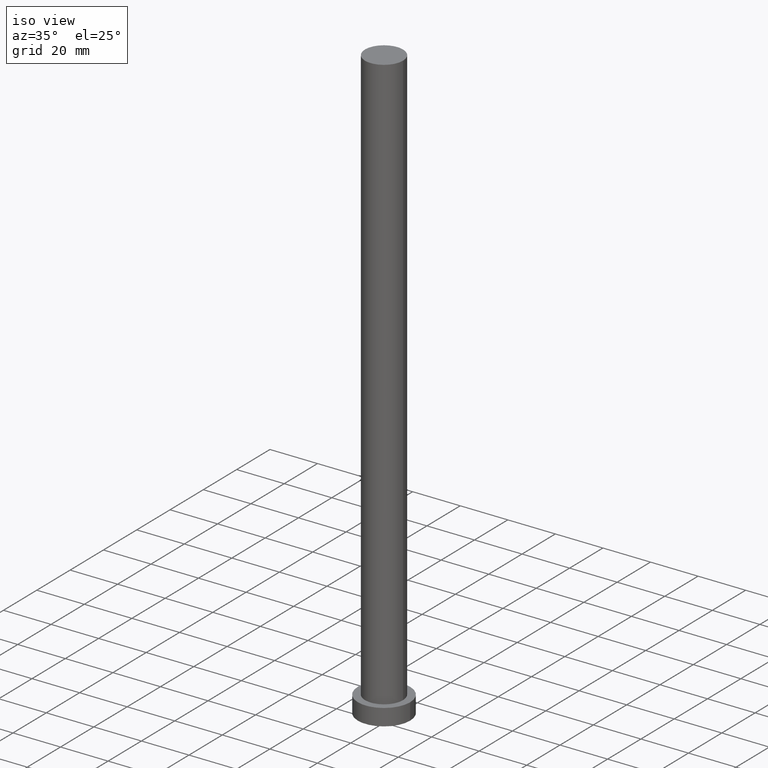
[diagram: clean part render]
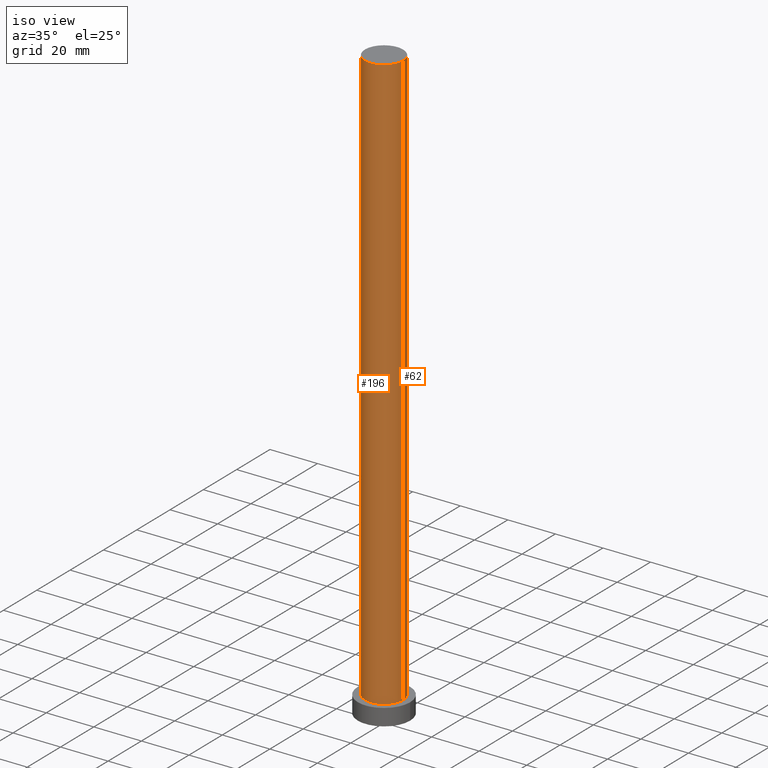
[diagram: same view with one multi-face feature highlighted, each face labeled with its STEP entity id]
A machine part, iso view. The highlighted faces form ONE feature: a constant-radius fillet chain: 2 tangent blend faces with common blend radius 8 mm. The faces share edges in the B-rep.
Their STEP definitions:
[1] entity #62 (Cylinder):
#5 = DIRECTION ( 'NONE',  ( 1.000000000000000000, 0.000000000000000000, 0.000000000000000000 ) ) ;
#11 = EDGE_CURVE ( 'NONE', #217, #18, #31, .T. ) ;
#18 = VERTEX_POINT ( 'NONE', #213 ) ;
#21 = DIRECTION ( 'NONE',  ( 0.000000000000000000, 0.000000000000000000, 1.000000000000000000 ) ) ;
#31 = LINE ( 'NONE', #197, #54 ) ;
#54 = VECTOR ( 'NONE', #135, 1000.000000000000000 ) ;
#62 = ADVANCED_FACE ( 'NONE', ( #143 ), #182, .T. ) ;
#63 = CARTESIAN_POINT ( 'NONE',  ( 8.000000000000000000, 9.797174393178825657E-16, 250.0000000000000000 ) ) ;
#75 = ORIENTED_EDGE ( 'NONE', *, *, #226, .T. ) ;
#82 = CARTESIAN_POINT ( 'NONE',  ( 0.000000000000000000, 0.000000000000000000, 7.000000000000000000 ) ) ;
#86 = CARTESIAN_POINT ( 'NONE',  ( -8.000000000000000000, 0.000000000000000000, 7.000000000000000000 ) ) ;
#103 = DIRECTION ( 'NONE',  ( 0.000000000000000000, 0.000000000000000000, 1.000000000000000000 ) ) ;
#106 = EDGE_CURVE ( 'NONE', #217, #212, #173, .T. ) ;
#108 = CARTESIAN_POINT ( 'NONE',  ( 0.000000000000000000, 0.000000000000000000, 250.0000000000000000 ) ) ;
#116 = AXIS2_PLACEMENT_3D ( 'NONE', #82, #103, #129 ) ;
#117 = DIRECTION ( 'NONE',  ( -0.000000000000000000, -0.000000000000000000, -1.000000000000000000 ) ) ;
#126 = DIRECTION ( 'NONE',  ( -0.000000000000000000, -0.000000000000000000, -1.000000000000000000 ) ) ;
#129 = DIRECTION ( 'NONE',  ( 1.000000000000000000, 0.000000000000000000, 0.000000000000000000 ) ) ;
#135 = DIRECTION ( 'NONE',  ( -0.000000000000000000, -0.000000000000000000, -1.000000000000000000 ) ) ;
#140 = EDGE_LOOP ( 'NONE', ( #157, #193, #75, #155 ) ) ;
#143 = FACE_OUTER_BOUND ( 'NONE', #140, .T. ) ;
#150 = CARTESIAN_POINT ( 'NONE',  ( -8.000000000000000000, 0.000000000000000000, 250.0000000000000000 ) ) ;
#155 = ORIENTED_EDGE ( 'NONE', *, *, #236, .F. ) ;
#157 = ORIENTED_EDGE ( 'NONE', *, *, #106, .F. ) ;
#158 = AXIS2_PLACEMENT_3D ( 'NONE', #241, #126, #199 ) ;
#173 = CIRCLE ( 'NONE', #200, 8.000000000000000000 ) ;
#182 = CYLINDRICAL_SURFACE ( 'NONE', #158, 8.000000000000000000 ) ;
#187 = LINE ( 'NONE', #150, #254 ) ;
#193 = ORIENTED_EDGE ( 'NONE', *, *, #11, .T. ) ;
#195 = CIRCLE ( 'NONE', #116, 8.000000000000000000 ) ;
#197 = CARTESIAN_POINT ( 'NONE',  ( 8.000000000000000000, 9.797174393178825657E-16, 250.0000000000000000 ) ) ;
#199 = DIRECTION ( 'NONE',  ( -1.000000000000000000, 0.000000000000000000, 0.000000000000000000 ) ) ;
#200 = AXIS2_PLACEMENT_3D ( 'NONE', #108, #21, #5 ) ;
#212 = VERTEX_POINT ( 'NONE', #242 ) ;
#213 = CARTESIAN_POINT ( 'NONE',  ( 8.000000000000000000, 9.797174393178825657E-16, 7.000000000000000000 ) ) ;
#217 = VERTEX_POINT ( 'NONE', #63 ) ;
#226 = EDGE_CURVE ( 'NONE', #18, #234, #195, .T. ) ;
#234 = VERTEX_POINT ( 'NONE', #86 ) ;
#236 = EDGE_CURVE ( 'NONE', #212, #234, #187, .T. ) ;
#241 = CARTESIAN_POINT ( 'NONE',  ( 0.000000000000000000, 0.000000000000000000, 250.0000000000000000 ) ) ;
#242 = CARTESIAN_POINT ( 'NONE',  ( -8.000000000000000000, 0.000000000000000000, 250.0000000000000000 ) ) ;
#254 = VECTOR ( 'NONE', #117, 1000.000000000000000 ) ;
[2] entity #196 (Cylinder):
#1 = CARTESIAN_POINT ( 'NONE',  ( 0.000000000000000000, 0.000000000000000000, 250.0000000000000000 ) ) ;
#11 = EDGE_CURVE ( 'NONE', #217, #18, #31, .T. ) ;
#18 = VERTEX_POINT ( 'NONE', #213 ) ;
#20 = CIRCLE ( 'NONE', #98, 8.000000000000000000 ) ;
#23 = CARTESIAN_POINT ( 'NONE',  ( 0.000000000000000000, 0.000000000000000000, 7.000000000000000000 ) ) ;
#31 = LINE ( 'NONE', #197, #54 ) ;
#33 = CARTESIAN_POINT ( 'NONE',  ( 0.000000000000000000, 0.000000000000000000, 250.0000000000000000 ) ) ;
#41 = EDGE_CURVE ( 'NONE', #212, #217, #216, .T. ) ;
#43 = DIRECTION ( 'NONE',  ( -1.000000000000000000, 0.000000000000000000, 0.000000000000000000 ) ) ;
#50 = ORIENTED_EDGE ( 'NONE', *, *, #94, .T. ) ;
#54 = VECTOR ( 'NONE', #135, 1000.000000000000000 ) ;
#56 = ORIENTED_EDGE ( 'NONE', *, *, #236, .T. ) ;
#60 = AXIS2_PLACEMENT_3D ( 'NONE', #1, #181, #43 ) ;
#63 = CARTESIAN_POINT ( 'NONE',  ( 8.000000000000000000, 9.797174393178825657E-16, 250.0000000000000000 ) ) ;
#65 = DIRECTION ( 'NONE',  ( 1.000000000000000000, 0.000000000000000000, 0.000000000000000000 ) ) ;
#74 = ORIENTED_EDGE ( 'NONE', *, *, #11, .F. ) ;
#81 = DIRECTION ( 'NONE',  ( 0.000000000000000000, 0.000000000000000000, 1.000000000000000000 ) ) ;
#85 = FACE_OUTER_BOUND ( 'NONE', #134, .T. ) ;
#86 = CARTESIAN_POINT ( 'NONE',  ( -8.000000000000000000, 0.000000000000000000, 7.000000000000000000 ) ) ;
#94 = EDGE_CURVE ( 'NONE', #234, #18, #20, .T. ) ;
#98 = AXIS2_PLACEMENT_3D ( 'NONE', #23, #81, #65 ) ;
#111 = AXIS2_PLACEMENT_3D ( 'NONE', #33, #175, #121 ) ;
#117 = DIRECTION ( 'NONE',  ( -0.000000000000000000, -0.000000000000000000, -1.000000000000000000 ) ) ;
#121 = DIRECTION ( 'NONE',  ( 1.000000000000000000, 0.000000000000000000, 0.000000000000000000 ) ) ;
#122 = ORIENTED_EDGE ( 'NONE', *, *, #41, .F. ) ;
#134 = EDGE_LOOP ( 'NONE', ( #74, #122, #56, #50 ) ) ;
#135 = DIRECTION ( 'NONE',  ( -0.000000000000000000, -0.000000000000000000, -1.000000000000000000 ) ) ;
#150 = CARTESIAN_POINT ( 'NONE',  ( -8.000000000000000000, 0.000000000000000000, 250.0000000000000000 ) ) ;
#175 = DIRECTION ( 'NONE',  ( 0.000000000000000000, 0.000000000000000000, 1.000000000000000000 ) ) ;
#181 = DIRECTION ( 'NONE',  ( -0.000000000000000000, -0.000000000000000000, -1.000000000000000000 ) ) ;
#187 = LINE ( 'NONE', #150, #254 ) ;
#196 = ADVANCED_FACE ( 'NONE', ( #85 ), #225, .T. ) ;
#197 = CARTESIAN_POINT ( 'NONE',  ( 8.000000000000000000, 9.797174393178825657E-16, 250.0000000000000000 ) ) ;
#212 = VERTEX_POINT ( 'NONE', #242 ) ;
#213 = CARTESIAN_POINT ( 'NONE',  ( 8.000000000000000000, 9.797174393178825657E-16, 7.000000000000000000 ) ) ;
#216 = CIRCLE ( 'NONE', #111, 8.000000000000000000 ) ;
#217 = VERTEX_POINT ( 'NONE', #63 ) ;
#225 = CYLINDRICAL_SURFACE ( 'NONE', #60, 8.000000000000000000 ) ;
#234 = VERTEX_POINT ( 'NONE', #86 ) ;
#236 = EDGE_CURVE ( 'NONE', #212, #234, #187, .T. ) ;
#242 = CARTESIAN_POINT ( 'NONE',  ( -8.000000000000000000, 0.000000000000000000, 250.0000000000000000 ) ) ;
#254 = VECTOR ( 'NONE', #117, 1000.000000000000000 ) ;